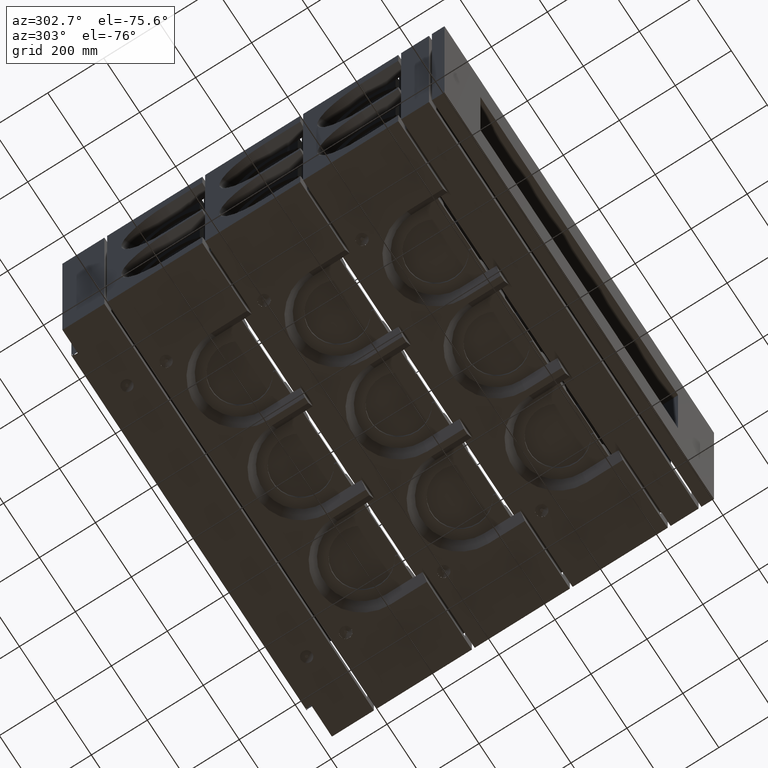
[diagram: clean part render]
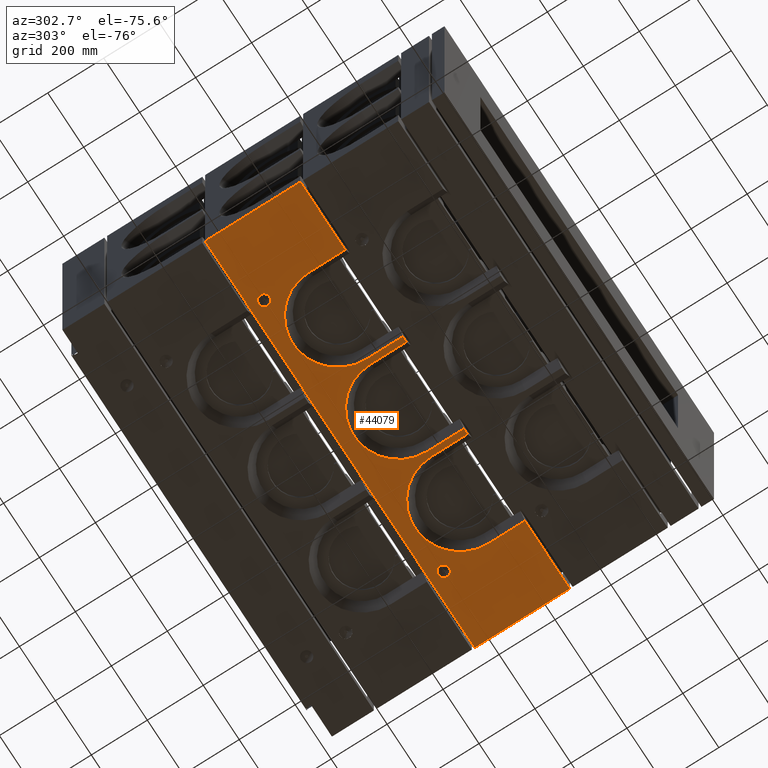
[diagram: same view with one face highlighted and labeled with its STEP entity id]
A machine part, auxiliary view. The second image highlights one B-rep face of the part: STEP entity #44079.
In plain terms, the highlighted planar face has unit normal (0, -0, 1).
Its self-contained STEP definition (entity closure, byte-faithful):
#368 = CARTESIAN_POINT ( 'NONE',  ( -750.0000000000003411, 855.0000000000003411, -400.0000000000000568 ) ) ;
#496 = VECTOR ( 'NONE', #31551, 1000.000000000000000 ) ;
#529 = EDGE_CURVE ( 'NONE', #24565, #32576, #9058, .T. ) ;
#596 = LINE ( 'NONE', #2365, #26557 ) ;
#780 = DIRECTION ( 'NONE',  ( 1.000000000000000000, 0.0000000000000000000, 0.0000000000000000000 ) ) ;
#1051 = VERTEX_POINT ( 'NONE', #44777 ) ;
#2365 = CARTESIAN_POINT ( 'NONE',  ( 500.0000000000000000, 645.0000000000004547, -400.0000000000001705 ) ) ;
#2523 = CARTESIAN_POINT ( 'NONE',  ( -160.0000000000000284, 645.0000000000003411, -400.0000000000001705 ) ) ;
#2661 = EDGE_CURVE ( 'NONE', #20495, #8463, #31970, .T. ) ;
#2722 = EDGE_CURVE ( 'NONE', #32576, #25246, #18547, .T. ) ;
#2886 = VECTOR ( 'NONE', #17045, 1000.000000000000000 ) ;
#3626 = VECTOR ( 'NONE', #26536, 1000.000000000000000 ) ;
#3754 = ORIENTED_EDGE ( 'NONE', *, *, #4705, .T. ) ;
#3920 = CARTESIAN_POINT ( 'NONE',  ( 520.0000000000001137, 805.0000000000003411, -400.0000000000000568 ) ) ;
#4596 = CIRCLE ( 'NONE', #38071, 159.9999999999999716 ) ;
#4705 = EDGE_CURVE ( 'NONE', #11302, #14666, #15256, .T. ) ;
#4776 = ORIENTED_EDGE ( 'NONE', *, *, #42612, .T. ) ;
#4789 = VERTEX_POINT ( 'NONE', #38453 ) ;
#4810 = FACE_OUTER_BOUND ( 'NONE', #19497, .T. ) ;
#5380 = ORIENTED_EDGE ( 'NONE', *, *, #23379, .F. ) ;
#5714 = CARTESIAN_POINT ( 'NONE',  ( -750.0000000000003411, 515.0000000000003411, -400.0000000000001705 ) ) ;
#6401 = LINE ( 'NONE', #9169, #7502 ) ;
#6472 = CARTESIAN_POINT ( 'NONE',  ( 160.0000000000000284, 645.0000000000004547, -400.0000000000001705 ) ) ;
#6506 = CARTESIAN_POINT ( 'NONE',  ( 0.0000000000000000000, 645.0000000000003411, -400.0000000000001705 ) ) ;
#6739 = PLANE ( 'NONE',  #18292 ) ;
#6833 = ORIENTED_EDGE ( 'NONE', *, *, #8498, .T. ) ;
#7106 = DIRECTION ( 'NONE',  ( -1.881626355904905735E-48, -1.000000000000000000, -2.775557561562891351E-16 ) ) ;
#7299 = CARTESIAN_POINT ( 'NONE',  ( 750.0000000000000000, 855.0000000000003411, -400.0000000000000568 ) ) ;
#7502 = VECTOR ( 'NONE', #16257, 1000.000000000000000 ) ;
#7536 = EDGE_CURVE ( 'NONE', #14666, #31077, #6401, .T. ) ;
#7740 = VECTOR ( 'NONE', #7106, 1000.000000000000000 ) ;
#8035 = EDGE_CURVE ( 'NONE', #42146, #44121, #42300, .T. ) ;
#8068 = CARTESIAN_POINT ( 'NONE',  ( -180.0000000000000568, 645.0000000000004547, -400.0000000000001705 ) ) ;
#8196 = EDGE_CURVE ( 'NONE', #39704, #24565, #10999, .T. ) ;
#8463 = VERTEX_POINT ( 'NONE', #5714 ) ;
#8498 = EDGE_CURVE ( 'NONE', #31077, #4789, #596, .T. ) ;
#9058 = LINE ( 'NONE', #24707, #30630 ) ;
#9143 = CARTESIAN_POINT ( 'NONE',  ( 500.0000000000001137, 805.0000000000003411, -400.0000000000000568 ) ) ;
#9169 = CARTESIAN_POINT ( 'NONE',  ( 750.0000000000000000, 515.0000000000003411, -400.0000000000001705 ) ) ;
#9538 = DIRECTION ( 'NONE',  ( 1.000000000000000000, 0.0000000000000000000, 0.0000000000000000000 ) ) ;
#9813 = VERTEX_POINT ( 'NONE', #40153 ) ;
#9819 = CARTESIAN_POINT ( 'NONE',  ( -500.0000000000001137, 515.0000000000003411, -400.0000000000001705 ) ) ;
#9917 = EDGE_LOOP ( 'NONE', ( #36422 ) ) ;
#10127 = DIRECTION ( 'NONE',  ( 1.000000000000000000, 0.0000000000000000000, 0.0000000000000000000 ) ) ;
#10999 = CIRCLE ( 'NONE', #27722, 160.0000000000000284 ) ;
#11035 = CARTESIAN_POINT ( 'NONE',  ( -480.0000000000003979, 805.0000000000003411, -400.0000000000000568 ) ) ;
#11047 = EDGE_CURVE ( 'NONE', #21579, #21579, #26063, .T. ) ;
#11248 = LINE ( 'NONE', #13716, #28452 ) ;
#11302 = VERTEX_POINT ( 'NONE', #7299 ) ;
#11748 = AXIS2_PLACEMENT_3D ( 'NONE', #31993, #38648, #780 ) ;
#12718 = CARTESIAN_POINT ( 'NONE',  ( -500.0000000000001137, 395.0000000000003411, -400.0000000000001705 ) ) ;
#13368 = VERTEX_POINT ( 'NONE', #35055 ) ;
#13524 = FACE_BOUND ( 'NONE', #18588, .T. ) ;
#13559 = CARTESIAN_POINT ( 'NONE',  ( 750.0000000000000000, 855.0000000000003411, -400.0000000000000568 ) ) ;
#13716 = CARTESIAN_POINT ( 'NONE',  ( 750.0000000000000000, 515.0000000000003411, -400.0000000000001705 ) ) ;
#13830 = CARTESIAN_POINT ( 'NONE',  ( 750.0000000000000000, 890.0000000000003411, -400.0000000000000568 ) ) ;
#13975 = LINE ( 'NONE', #12718, #3626 ) ;
#14594 = DIRECTION ( 'NONE',  ( 1.000000000000000000, 0.0000000000000000000, 0.0000000000000000000 ) ) ;
#14666 = VERTEX_POINT ( 'NONE', #33741 ) ;
#14874 = CARTESIAN_POINT ( 'NONE',  ( -179.9999999999999432, 515.0000000000003411, -400.0000000000001705 ) ) ;
#15256 = LINE ( 'NONE', #13830, #16317 ) ;
#15318 = DIRECTION ( 'NONE',  ( -4.440892098500626162E-16, 1.000000000000000000, 2.775557561562891351E-16 ) ) ;
#16238 = AXIS2_PLACEMENT_3D ( 'NONE', #20001, #43609, #9538 ) ;
#16257 = DIRECTION ( 'NONE',  ( -1.000000000000000000, -8.474091755303837753E-33, 1.734723475976808019E-17 ) ) ;
#16317 = VECTOR ( 'NONE', #17553, 1000.000000000000000 ) ;
#16429 = ORIENTED_EDGE ( 'NONE', *, *, #17227, .T. ) ;
#16889 = DIRECTION ( 'NONE',  ( -4.440892098500626162E-16, 1.000000000000000000, 2.775557561562891351E-16 ) ) ;
#17045 = DIRECTION ( 'NONE',  ( -4.440892098500626162E-16, 1.000000000000000000, 2.775557561562891351E-16 ) ) ;
#17227 = EDGE_CURVE ( 'NONE', #42463, #42463, #34640, .T. ) ;
#17553 = DIRECTION ( 'NONE',  ( -1.881626355904905735E-48, -1.000000000000000000, -2.775557561562891351E-16 ) ) ;
#17739 = ORIENTED_EDGE ( 'NONE', *, *, #23454, .T. ) ;
#17926 = DIRECTION ( 'NONE',  ( -1.881626355904905735E-48, -1.000000000000000000, -2.775557561562891351E-16 ) ) ;
#18292 = AXIS2_PLACEMENT_3D ( 'NONE', #32223, #20607, #29541 ) ;
#18547 = LINE ( 'NONE', #29061, #25507 ) ;
#18588 = EDGE_LOOP ( 'NONE', ( #16429 ) ) ;
#18928 = ORIENTED_EDGE ( 'NONE', *, *, #8196, .T. ) ;
#19279 = DIRECTION ( 'NONE',  ( 1.000000000000000000, 0.0000000000000000000, 0.0000000000000000000 ) ) ;
#19497 = EDGE_LOOP ( 'NONE', ( #43904, #4776, #30832, #18928, #22087, #26554, #35156, #42149, #42014, #23424, #26753, #5380, #3754, #35249, #6833, #17739 ) ) ;
#20001 = CARTESIAN_POINT ( 'NONE',  ( -339.9999999999999432, 645.0000000000003411, -400.0000000000001705 ) ) ;
#20129 = LINE ( 'NONE', #35058, #27600 ) ;
#20495 = VERTEX_POINT ( 'NONE', #368 ) ;
#20607 = DIRECTION ( 'NONE',  ( 1.734723475976808019E-17, -4.996003610813204432E-16, 1.000000000000000000 ) ) ;
#21042 = CARTESIAN_POINT ( 'NONE',  ( -750.0000000000003411, 890.0000000000003411, -400.0000000000000568 ) ) ;
#21150 = DIRECTION ( 'NONE',  ( -1.000000000000000000, -8.474091755303837753E-33, 1.734723475976808019E-17 ) ) ;
#21561 = CARTESIAN_POINT ( 'NONE',  ( 180.0000000000000000, 395.0000000000003411, -400.0000000000001705 ) ) ;
#21579 = VERTEX_POINT ( 'NONE', #11035 ) ;
#21705 = DIRECTION ( 'NONE',  ( -1.000000000000000000, -8.474091755303837753E-33, 1.734723475976808019E-17 ) ) ;
#22087 = ORIENTED_EDGE ( 'NONE', *, *, #529, .T. ) ;
#23211 = FACE_BOUND ( 'NONE', #9917, .T. ) ;
#23379 = EDGE_CURVE ( 'NONE', #11302, #20495, #24575, .T. ) ;
#23424 = ORIENTED_EDGE ( 'NONE', *, *, #34754, .T. ) ;
#23454 = EDGE_CURVE ( 'NONE', #4789, #1051, #4596, .T. ) ;
#24036 = AXIS2_PLACEMENT_3D ( 'NONE', #9143, #32914, #19279 ) ;
#24230 = DIRECTION ( 'NONE',  ( -1.000000000000000000, -8.474091755303837753E-33, 1.734723475976808019E-17 ) ) ;
#24565 = VERTEX_POINT ( 'NONE', #2523 ) ;
#24575 = LINE ( 'NONE', #13559, #32606 ) ;
#24707 = CARTESIAN_POINT ( 'NONE',  ( -160.0000000000000284, 395.0000000000003411, -400.0000000000001705 ) ) ;
#25246 = VERTEX_POINT ( 'NONE', #14874 ) ;
#25507 = VECTOR ( 'NONE', #35686, 1000.000000000000000 ) ;
#26063 = CIRCLE ( 'NONE', #11748, 19.99999999999996092 ) ;
#26362 = VERTEX_POINT ( 'NONE', #9819 ) ;
#26536 = DIRECTION ( 'NONE',  ( -1.881626355904905735E-48, -1.000000000000000000, -2.775557561562891351E-16 ) ) ;
#26554 = ORIENTED_EDGE ( 'NONE', *, *, #2722, .T. ) ;
#26557 = VECTOR ( 'NONE', #16889, 1000.000000000000000 ) ;
#26753 = ORIENTED_EDGE ( 'NONE', *, *, #2661, .F. ) ;
#27600 = VECTOR ( 'NONE', #21150, 1000.000000000000000 ) ;
#27722 = AXIS2_PLACEMENT_3D ( 'NONE', #6506, #41457, #10127 ) ;
#28452 = VECTOR ( 'NONE', #21705, 1000.000000000000000 ) ;
#29061 = CARTESIAN_POINT ( 'NONE',  ( 750.0000000000000000, 515.0000000000003411, -400.0000000000001705 ) ) ;
#29541 = DIRECTION ( 'NONE',  ( 1.000000000000000000, 8.474091755303837753E-33, -1.734723475976808019E-17 ) ) ;
#30354 = CARTESIAN_POINT ( 'NONE',  ( -500.0000000000001137, 645.0000000000003411, -400.0000000000001705 ) ) ;
#30630 = VECTOR ( 'NONE', #17926, 1000.000000000000000 ) ;
#30832 = ORIENTED_EDGE ( 'NONE', *, *, #31523, .T. ) ;
#31077 = VERTEX_POINT ( 'NONE', #33106 ) ;
#31232 = DIRECTION ( 'NONE',  ( 1.734723475976807711E-17, -4.996003610813204432E-16, 1.000000000000000000 ) ) ;
#31523 = EDGE_CURVE ( 'NONE', #13368, #39704, #43370, .T. ) ;
#31551 = DIRECTION ( 'NONE',  ( -1.881626355904905735E-48, -1.000000000000000000, -2.775557561562891351E-16 ) ) ;
#31911 = LINE ( 'NONE', #8068, #38405 ) ;
#31970 = LINE ( 'NONE', #21042, #7740 ) ;
#31993 = CARTESIAN_POINT ( 'NONE',  ( -500.0000000000003411, 805.0000000000003411, -400.0000000000000568 ) ) ;
#32223 = CARTESIAN_POINT ( 'NONE',  ( 750.0000000000000000, 890.0000000000003411, -400.0000000000000568 ) ) ;
#32576 = VERTEX_POINT ( 'NONE', #33670 ) ;
#32606 = VECTOR ( 'NONE', #24230, 1000.000000000000000 ) ;
#32914 = DIRECTION ( 'NONE',  ( 3.081487911019577365E-33, -4.996003610813204432E-16, 1.000000000000000000 ) ) ;
#33051 = EDGE_CURVE ( 'NONE', #25246, #42146, #31911, .T. ) ;
#33106 = CARTESIAN_POINT ( 'NONE',  ( 500.0000000000001137, 515.0000000000003411, -400.0000000000001705 ) ) ;
#33286 = CARTESIAN_POINT ( 'NONE',  ( 160.0000000000000284, 645.0000000000004547, -400.0000000000001705 ) ) ;
#33441 = LINE ( 'NONE', #21561, #496 ) ;
#33670 = CARTESIAN_POINT ( 'NONE',  ( -160.0000000000000284, 515.0000000000003411, -400.0000000000001705 ) ) ;
#33741 = CARTESIAN_POINT ( 'NONE',  ( 750.0000000000000000, 515.0000000000003411, -400.0000000000001705 ) ) ;
#34640 = CIRCLE ( 'NONE', #24036, 20.00000000000001776 ) ;
#34754 = EDGE_CURVE ( 'NONE', #26362, #8463, #11248, .T. ) ;
#35055 = CARTESIAN_POINT ( 'NONE',  ( 160.0000000000000853, 515.0000000000003411, -400.0000000000001705 ) ) ;
#35058 = CARTESIAN_POINT ( 'NONE',  ( 750.0000000000000000, 515.0000000000003411, -400.0000000000001705 ) ) ;
#35156 = ORIENTED_EDGE ( 'NONE', *, *, #33051, .T. ) ;
#35249 = ORIENTED_EDGE ( 'NONE', *, *, #7536, .T. ) ;
#35279 = CARTESIAN_POINT ( 'NONE',  ( 340.0000000000000000, 645.0000000000003411, -400.0000000000001705 ) ) ;
#35686 = DIRECTION ( 'NONE',  ( -1.000000000000000000, -8.474091755303837753E-33, 1.734723475976808019E-17 ) ) ;
#36376 = CARTESIAN_POINT ( 'NONE',  ( -180.0000000000000568, 645.0000000000004547, -400.0000000000001705 ) ) ;
#36422 = ORIENTED_EDGE ( 'NONE', *, *, #11047, .T. ) ;
#37926 = EDGE_CURVE ( 'NONE', #44121, #26362, #13975, .T. ) ;
#38071 = AXIS2_PLACEMENT_3D ( 'NONE', #35279, #31232, #14594 ) ;
#38405 = VECTOR ( 'NONE', #15318, 1000.000000000000000 ) ;
#38453 = CARTESIAN_POINT ( 'NONE',  ( 500.0000000000000000, 645.0000000000004547, -400.0000000000001705 ) ) ;
#38648 = DIRECTION ( 'NONE',  ( 3.081487911019577365E-33, -4.996003610813204432E-16, 1.000000000000000000 ) ) ;
#39704 = VERTEX_POINT ( 'NONE', #33286 ) ;
#40153 = CARTESIAN_POINT ( 'NONE',  ( 180.0000000000000000, 515.0000000000003411, -400.0000000000001705 ) ) ;
#41457 = DIRECTION ( 'NONE',  ( 1.734723475976807711E-17, -4.996003610813204432E-16, 1.000000000000000000 ) ) ;
#42014 = ORIENTED_EDGE ( 'NONE', *, *, #37926, .T. ) ;
#42146 = VERTEX_POINT ( 'NONE', #36376 ) ;
#42149 = ORIENTED_EDGE ( 'NONE', *, *, #8035, .T. ) ;
#42300 = CIRCLE ( 'NONE', #16238, 160.0000000000000284 ) ;
#42463 = VERTEX_POINT ( 'NONE', #3920 ) ;
#42612 = EDGE_CURVE ( 'NONE', #9813, #13368, #20129, .T. ) ;
#43204 = EDGE_CURVE ( 'NONE', #1051, #9813, #33441, .T. ) ;
#43370 = LINE ( 'NONE', #6472, #2886 ) ;
#43609 = DIRECTION ( 'NONE',  ( 1.734723475976807711E-17, -4.996003610813204432E-16, 1.000000000000000000 ) ) ;
#43904 = ORIENTED_EDGE ( 'NONE', *, *, #43204, .T. ) ;
#44079 = ADVANCED_FACE ( 'NONE', ( #23211, #13524, #4810 ), #6739, .F. ) ;
#44121 = VERTEX_POINT ( 'NONE', #30354 ) ;
#44777 = CARTESIAN_POINT ( 'NONE',  ( 180.0000000000000000, 645.0000000000003411, -400.0000000000001705 ) ) ;